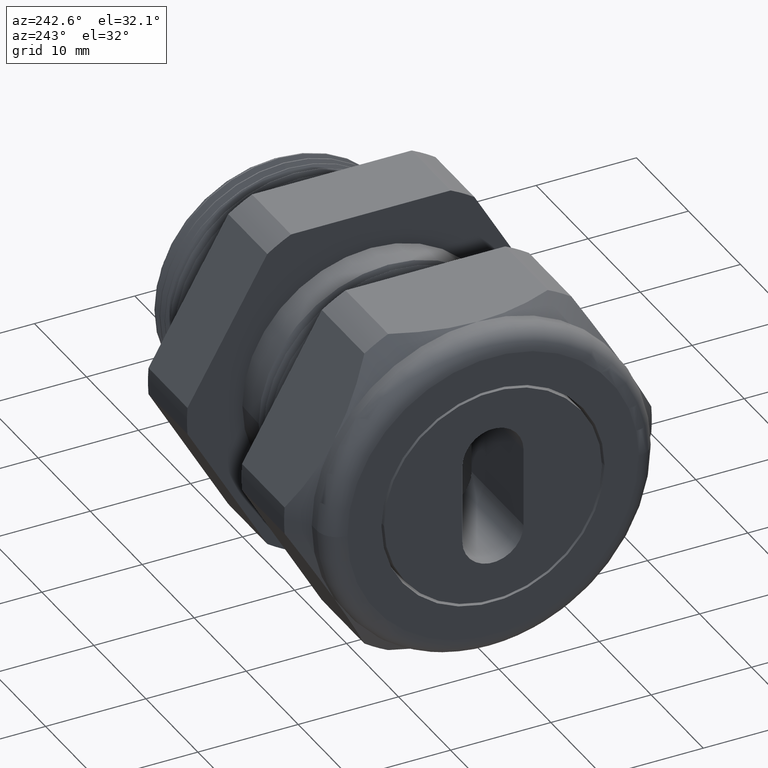
[diagram: clean part render]
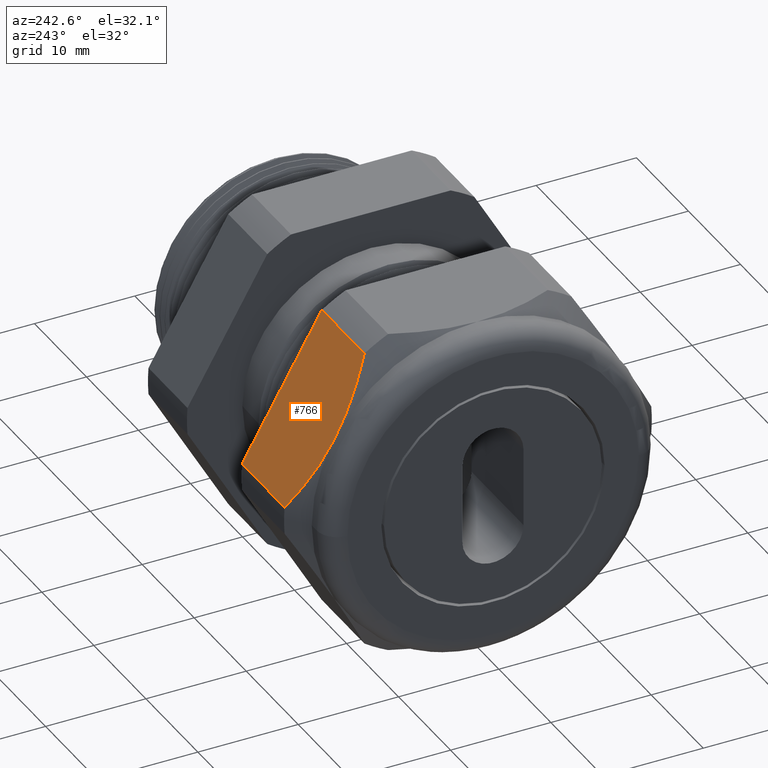
[diagram: same view with one face highlighted and labeled with its STEP entity id]
A machine part, auxiliary view. The second image highlights one B-rep face of the part: STEP entity #766.
In plain terms, the highlighted planar face has unit normal (-0, 0.866, 0.5).
Its self-contained STEP definition (entity closure, byte-faithful):
#312 = VERTEX_POINT ( 'NONE', #2026 ) ;
#759 = VERTEX_POINT ( 'NONE', #2941 ) ;
#760 = VERTEX_POINT ( 'NONE', #2938 ) ;
#766 = ADVANCED_FACE ( 'NONE', ( #2972 ), #2971, .T. ) ;
#767 = EDGE_LOOP ( 'NONE', ( #768, #772, #826, #828, #829 ) ) ;
#768 = ORIENTED_EDGE ( 'NONE', *, *, #769, .T. ) ;
#769 = EDGE_CURVE ( 'NONE', #770, #771, #2966, .T. ) ;
#770 = VERTEX_POINT ( 'NONE', #2962 ) ;
#771 = VERTEX_POINT ( 'NONE', #2961 ) ;
#772 = ORIENTED_EDGE ( 'NONE', *, *, #825, .T. ) ;
#825 = EDGE_CURVE ( 'NONE', #771, #312, #3095, .T. ) ;
#826 = ORIENTED_EDGE ( 'NONE', *, *, #827, .T. ) ;
#827 = EDGE_CURVE ( 'NONE', #312, #760, #3094, .T. ) ;
#828 = ORIENTED_EDGE ( 'NONE', *, *, #838, .F. ) ;
#829 = ORIENTED_EDGE ( 'NONE', *, *, #830, .F. ) ;
#830 = EDGE_CURVE ( 'NONE', #770, #759, #3093, .T. ) ;
#838 = EDGE_CURVE ( 'NONE', #759, #760, #3121, .T. ) ;
#2026 = CARTESIAN_POINT ( 'NONE',  ( -1.411889763779527400, 0.5629165124598855000, 0.3250000000000002900 ) ) ;
#2938 = CARTESIAN_POINT ( 'NONE',  ( -1.340389763779527500, 0.4063420493440889100, 0.5961949252843789000 ) ) ;
#2941 = CARTESIAN_POINT ( 'NONE',  ( -1.018188976377952400, 0.4063420493440889600, 0.5961949252843789000 ) ) ;
#2961 = CARTESIAN_POINT ( 'NONE',  ( -1.340389763779527500, 0.7194909755756818700, 0.05380507471562172300 ) ) ;
#2962 = CARTESIAN_POINT ( 'NONE',  ( -1.018188976377952400, 0.7194909755756818700, 0.05380507471562172300 ) ) ;
#2963 = DIRECTION ( 'NONE',  ( -1.000000000000000000, -0.0000000000000000000, -0.0000000000000000000 ) ) ;
#2964 = VECTOR ( 'NONE', #2963, 39.37007874015748100 ) ;
#2965 = CARTESIAN_POINT ( 'NONE',  ( 0.1200000000000000900, 0.7194909755756818700, 0.05380507471562172300 ) ) ;
#2966 = LINE ( 'NONE', #2965, #2964 ) ;
#2967 = DIRECTION ( 'NONE',  ( 0.0000000000000000000, -0.5000000000000001100, 0.8660254037844386000 ) ) ;
#2968 = DIRECTION ( 'NONE',  ( -0.0000000000000000000, 0.8660254037844386000, 0.5000000000000001100 ) ) ;
#2969 = AXIS2_PLACEMENT_3D ( 'NONE', #2970, #2968, #2967 ) ;
#2970 = CARTESIAN_POINT ( 'NONE',  ( 0.1200000000000000900, 0.4063420493440889100, 0.5961949252843789000 ) ) ;
#2971 = PLANE ( 'NONE',  #2969 ) ;
#2972 = FACE_OUTER_BOUND ( 'NONE', #767, .T. ) ;
#3074 = DIRECTION ( 'NONE',  ( -1.874515102111105700E-017, -0.5000000000000002200, 0.8660254037844386000 ) ) ;
#3075 = VECTOR ( 'NONE', #3074, 39.37007874015747400 ) ;
#3076 = CARTESIAN_POINT ( 'NONE',  ( -1.018188976377952400, 0.6916665124598854200, 0.1019984585255073300 ) ) ;
#3077 = CARTESIAN_POINT ( 'NONE',  ( -1.340389763779527500, 0.4063420493440889100, 0.5961949252843789000 ) ) ;
#3078 = CARTESIAN_POINT ( 'NONE',  ( -1.362038095775945000, 0.4312810962751708600, 0.5529992289074001600 ) ) ;
#3079 = CARTESIAN_POINT ( 'NONE',  ( -1.380161853850736800, 0.4570573558384625800, 0.5083534377146961000 ) ) ;
#3080 = CARTESIAN_POINT ( 'NONE',  ( -1.405050007405226300, 0.5092737903524787700, 0.4179119201463268300 ) ) ;
#3081 = CARTESIAN_POINT ( 'NONE',  ( -1.411889763779526900, 0.5358248930679738700, 0.3719240612461092700 ) ) ;
#3082 = CARTESIAN_POINT ( 'NONE',  ( -1.411889763779527400, 0.5629165124598855000, 0.3250000000000002900 ) ) ;
#3083 = CARTESIAN_POINT ( 'NONE',  ( -1.411889763779527400, 0.5629165124598855000, 0.3250000000000002900 ) ) ;
#3084 = CARTESIAN_POINT ( 'NONE',  ( -1.411889763779527400, 0.5696940647084654000, 0.3132609351545071500 ) ) ;
#3085 = CARTESIAN_POINT ( 'NONE',  ( -1.411460853679630000, 0.5765336067434359000, 0.3014145008494350000 ) ) ;
#3086 = CARTESIAN_POINT ( 'NONE',  ( -1.409757307482530900, 0.5901225526399741500, 0.2778777561353258400 ) ) ;
#3087 = CARTESIAN_POINT ( 'NONE',  ( -1.408488242340941500, 0.5968650273424734900, 0.2661994473818494700 ) ) ;
#3088 = CARTESIAN_POINT ( 'NONE',  ( -1.403504729739887900, 0.6169458720203933000, 0.2314184041407930900 ) ) ;
#3089 = CARTESIAN_POINT ( 'NONE',  ( -1.398613598462209200, 0.6301376168794388100, 0.2085696318044405200 ) ) ;
#3090 = CARTESIAN_POINT ( 'NONE',  ( -1.379883036713412500, 0.6692072927766704600, 0.1408989681151867300 ) ) ;
#3091 = CARTESIAN_POINT ( 'NONE',  ( -1.362011327000795000, 0.6945827664818919900, 0.09694735839161496000 ) ) ;
#3092 = CARTESIAN_POINT ( 'NONE',  ( -1.340389763779527500, 0.7194909755756818700, 0.05380507471562172300 ) ) ;
#3093 = LINE ( 'NONE', #3076, #3075 ) ;
#3094 = B_SPLINE_CURVE_WITH_KNOTS ( 'NONE', 3,
 ( #3082, #3081, #3080, #3079, #3078, #3077 ),
 .UNSPECIFIED., .F., .F.,
 ( 4, 2, 4 ),
 ( 0.008163776578903759300, 0.01224274182034616400, 0.01632170706178856900 ),
 .UNSPECIFIED. ) ;
#3095 = B_SPLINE_CURVE_WITH_KNOTS ( 'NONE', 3,
 ( #3092, #3091, #3090, #3089, #3088, #3087, #3086, #3085, #3084, #3083 ),
 .UNSPECIFIED., .F., .F.,
 ( 4, 2, 2, 2, 4 ),
 ( 2.483249165348705300E-007, 0.004082012451910145900, 0.006122894515406952600, 0.007143335547155356400, 0.008163776578903759300 ),
 .UNSPECIFIED. ) ;
#3118 = DIRECTION ( 'NONE',  ( -1.000000000000000000, -0.0000000000000000000, -0.0000000000000000000 ) ) ;
#3119 = VECTOR ( 'NONE', #3118, 39.37007874015748100 ) ;
#3120 = CARTESIAN_POINT ( 'NONE',  ( 0.1200000000000000900, 0.4063420493440889600, 0.5961949252843789000 ) ) ;
#3121 = LINE ( 'NONE', #3120, #3119 ) ;